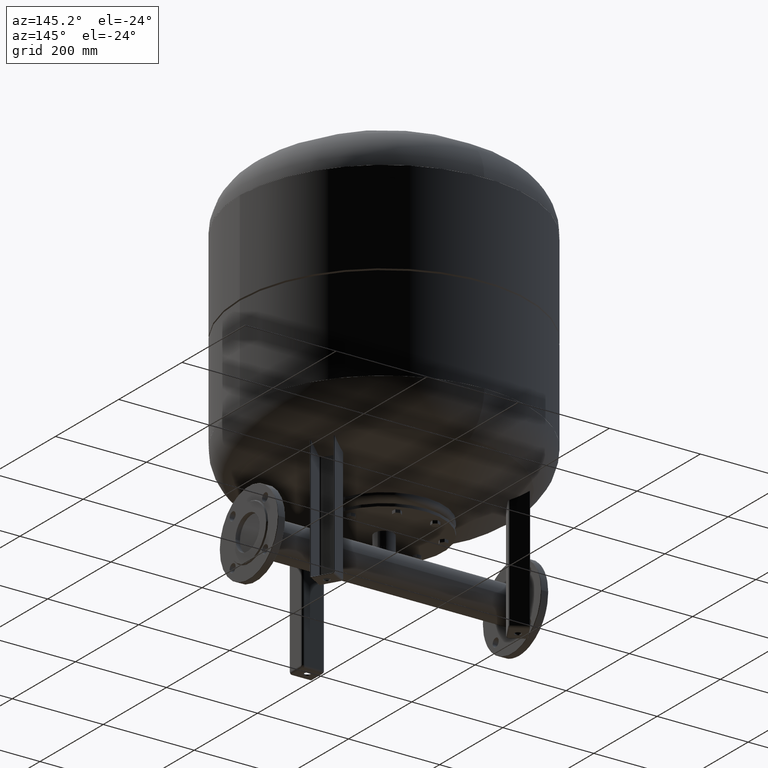
[diagram: clean part render]
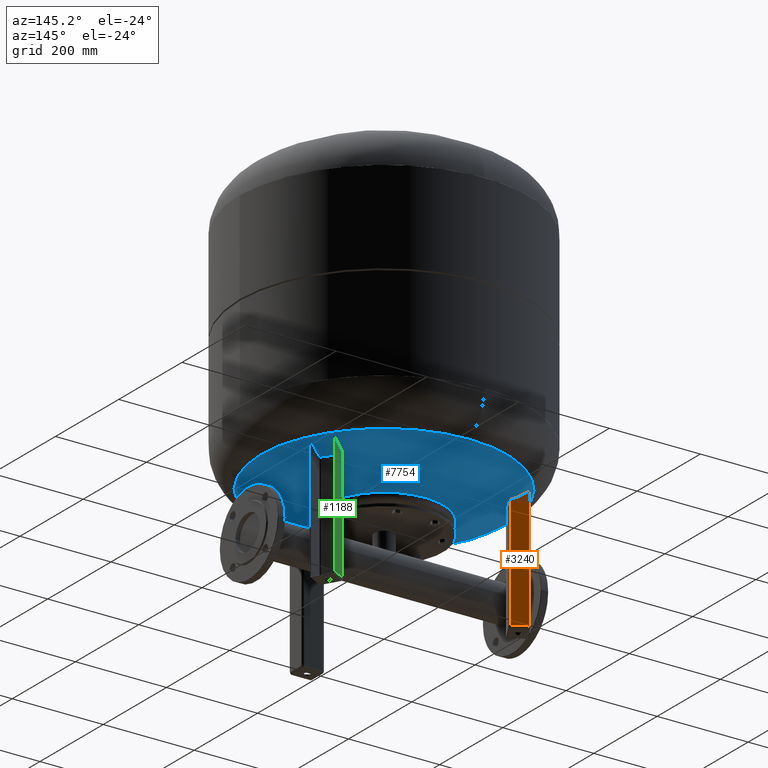
[diagram: same view with three faces highlighted in distinct colors, each labeled with its STEP entity id]
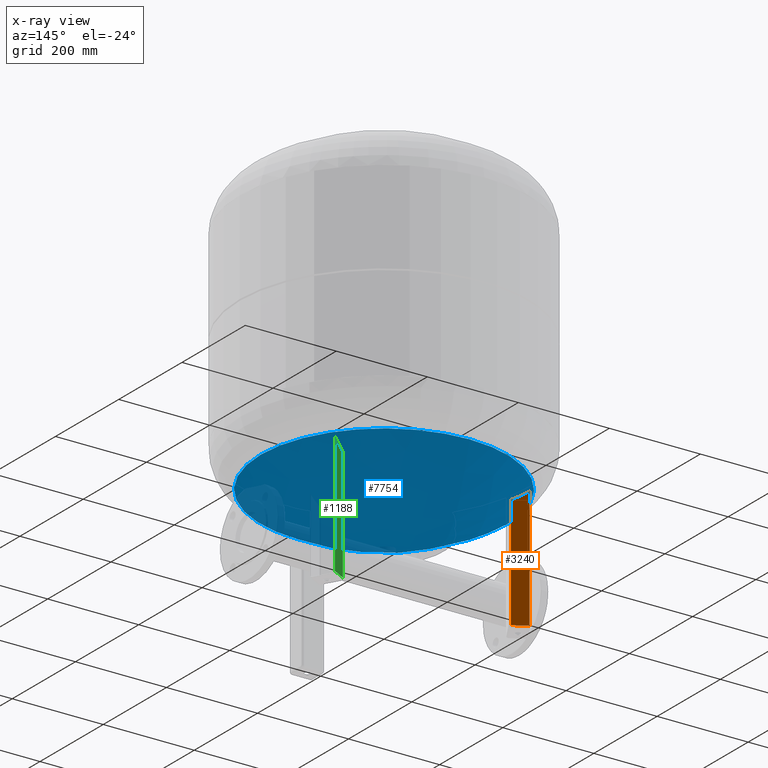
[diagram: x-ray of the same camera — body ghosted, the three highlighted faces saturated]
A machine part, auxiliary view with three faces highlighted in distinct colors.
The next image is the same camera in x-ray (body ghosted, the three faces saturated) — at least one of them is partly hidden behind the body in this view.
Their STEP definitions:

[orange] entity #3240 — the highlighted planar face has unit normal (0.5, 0.866, -0).
#2412=CARTESIAN_POINT('',(-184.520779360959750,135.400635094611120,274.0));
#2413=VERTEX_POINT('',#2412);
#2421=CARTESIAN_POINT('',(-213.965643089630670,152.400635094611090,274.0));
#2422=VERTEX_POINT('',#2421);
#2423=CARTESIAN_POINT('',(-213.965643089630670,152.400635094611090,274.0));
#2424=DIRECTION('',(0.866025403784439,-0.499999999999999,0.0));
#2425=VECTOR('',#2424,33.999999999999993);
#2426=LINE('',#2423,#2425);
#2427=EDGE_CURVE('',#2422,#2413,#2426,.T.);
#2732=CARTESIAN_POINT('',(-213.965643089630670,152.400635094611090,4.999999999999996));
#2733=VERTEX_POINT('',#2732);
#2734=CARTESIAN_POINT('',(-213.965643089630670,152.400635094611090,4.999999999999996));
#2735=DIRECTION('',(0.0,0.0,1.0));
#2736=VECTOR('',#2735,269.0);
#2737=LINE('',#2734,#2736);
#2738=EDGE_CURVE('',#2733,#2422,#2737,.T.);
#3115=CARTESIAN_POINT('',(-184.520779360959750,135.400635094611090,4.999999999999996));
#3116=VERTEX_POINT('',#3115);
#3117=CARTESIAN_POINT('',(-213.965643089630670,152.400635094611090,4.999999999999996));
#3118=DIRECTION('',(0.866025403784439,-0.500000000000000,0.0));
#3119=VECTOR('',#3118,34.000000000000007);
#3120=LINE('',#3117,#3119);
#3121=EDGE_CURVE('',#2733,#3116,#3120,.T.);
#3218=CARTESIAN_POINT('',(-184.520779360959750,135.400635094611090,4.999999999999996));
#3219=DIRECTION('',(0.0,0.0,1.0));
#3220=VECTOR('',#3219,269.0);
#3221=LINE('',#3218,#3220);
#3222=EDGE_CURVE('',#3116,#2413,#3221,.T.);
#3229=CARTESIAN_POINT('',(-214.831668493415120,152.900635094611090,-4.592425E-015));
#3230=DIRECTION('',(0.500000000000000,0.866025403784439,-1.836970E-016));
#3231=DIRECTION('',(-0.866025403784439,0.500000000000000,2.039447E-032));
#3232=AXIS2_PLACEMENT_3D('',#3229,#3230,#3231);
#3233=PLANE('',#3232);
#3234=ORIENTED_EDGE('',*,*,#2738,.T.);
#3235=ORIENTED_EDGE('',*,*,#2427,.T.);
#3236=ORIENTED_EDGE('',*,*,#3222,.F.);
#3237=ORIENTED_EDGE('',*,*,#3121,.F.);
#3238=EDGE_LOOP('',(#3234,#3235,#3236,#3237));
#3239=FACE_OUTER_BOUND('',#3238,.T.);
#3240=ADVANCED_FACE('',(#3239),#3233,.T.);

[blue] entity #7754 — the highlighted spherical surface has radius 509 mm.
#7693=CARTESIAN_POINT('',(8.065826E-015,-270.639024390243830,275.913560318702370));
#7694=VERTEX_POINT('',#7693);
#7710=CARTESIAN_POINT('',(-2.507680E-014,270.639024390243830,275.913560318702480));
#7711=VERTEX_POINT('',#7710);
#7719=CARTESIAN_POINT('',(-270.639024390243830,-1.431249E-014,275.913560318702420));
#7720=VERTEX_POINT('',#7719);
#7721=CARTESIAN_POINT('',(-7.495146E-015,-1.431249E-014,275.913560318702420));
#7722=DIRECTION('',(0.0,0.0,1.0));
#7723=DIRECTION('',(-1.0,0.0,0.0));
#7724=AXIS2_PLACEMENT_3D('',#7721,#7722,#7723);
#7725=CIRCLE('',#7724,270.639024390243830);
#7726=EDGE_CURVE('',#7711,#7720,#7725,.T.);
#7728=CARTESIAN_POINT('',(-7.495146E-015,-1.431249E-014,275.913560318702420));
#7729=DIRECTION('',(0.0,0.0,1.0));
#7730=DIRECTION('',(-1.0,0.0,0.0));
#7731=AXIS2_PLACEMENT_3D('',#7728,#7729,#7730);
#7732=CIRCLE('',#7731,270.639024390243830);
#7733=EDGE_CURVE('',#7720,#7694,#7732,.T.);
#7738=CARTESIAN_POINT('',(-1.005746E-013,-9.350178E-014,707.0));
#7739=DIRECTION('',(0.0,-1.0,0.0));
#7740=DIRECTION('',(1.0,0.0,0.0));
#7741=AXIS2_PLACEMENT_3D('',#7738,#7739,#7740);
#7742=SPHERICAL_SURFACE('',#7741,509.000000000000060);
#7743=ORIENTED_EDGE('',*,*,#7733,.F.);
#7744=ORIENTED_EDGE('',*,*,#7726,.F.);
#7745=CARTESIAN_POINT('',(-7.495146E-015,-1.431249E-014,275.913560318702420));
#7746=DIRECTION('',(0.0,0.0,1.0));
#7747=DIRECTION('',(-1.0,0.0,0.0));
#7748=AXIS2_PLACEMENT_3D('',#7745,#7746,#7747);
#7749=CIRCLE('',#7748,270.639024390243830);
#7750=EDGE_CURVE('',#7694,#7711,#7749,.T.);
#7751=ORIENTED_EDGE('',*,*,#7750,.F.);
#7752=EDGE_LOOP('',(#7743,#7744,#7751));
#7753=FACE_OUTER_BOUND('',#7752,.T.);
#7754=ADVANCED_FACE('',(#7753),#7742,.T.);

[green] entity #1188 — the highlighted planar face has unit normal (-0.5, 0.866, 0).
#250=CARTESIAN_POINT('',(213.965643089630760,152.400635094610890,274.0));
#251=VERTEX_POINT('',#250);
#259=CARTESIAN_POINT('',(184.520779360959840,135.400635094610890,274.0));
#260=VERTEX_POINT('',#259);
#261=CARTESIAN_POINT('',(184.520779360959840,135.400635094610890,274.0));
#262=DIRECTION('',(0.866025403784439,0.500000000000000,0.0));
#263=VECTOR('',#262,34.000000000000007);
#264=LINE('',#261,#263);
#265=EDGE_CURVE('',#260,#251,#264,.T.);
#695=CARTESIAN_POINT('',(213.965643089630760,152.400635094610890,5.000000000000004));
#696=VERTEX_POINT('',#695);
#723=CARTESIAN_POINT('',(213.965643089630760,152.400635094610890,5.000000000000004));
#724=DIRECTION('',(0.0,0.0,1.0));
#725=VECTOR('',#724,269.0);
#726=LINE('',#723,#725);
#727=EDGE_CURVE('',#696,#251,#726,.T.);
#923=CARTESIAN_POINT('',(184.520779360959840,135.400635094610890,5.000000000000004));
#924=VERTEX_POINT('',#923);
#932=CARTESIAN_POINT('',(184.520779360959840,135.400635094610890,5.000000000000004));
#933=DIRECTION('',(0.866025403784439,0.500000000000000,0.0));
#934=VECTOR('',#933,34.000000000000007);
#935=LINE('',#932,#934);
#936=EDGE_CURVE('',#924,#696,#935,.T.);
#1058=CARTESIAN_POINT('',(184.520779360959840,135.400635094610890,5.000000000000004));
#1059=DIRECTION('',(0.0,0.0,1.0));
#1060=VECTOR('',#1059,269.0);
#1061=LINE('',#1058,#1060);
#1062=EDGE_CURVE('',#924,#260,#1061,.T.);
#1177=CARTESIAN_POINT('',(180.190652342037650,132.900635094610890,4.592425E-015));
#1178=DIRECTION('',(-0.500000000000000,0.866025403784439,1.836970E-016));
#1179=DIRECTION('',(-0.866025403784439,-0.500000000000000,-2.039447E-032));
#1180=AXIS2_PLACEMENT_3D('',#1177,#1178,#1179);
#1181=PLANE('',#1180);
#1182=ORIENTED_EDGE('',*,*,#727,.F.);
#1183=ORIENTED_EDGE('',*,*,#936,.F.);
#1184=ORIENTED_EDGE('',*,*,#1062,.T.);
#1185=ORIENTED_EDGE('',*,*,#265,.T.);
#1186=EDGE_LOOP('',(#1182,#1183,#1184,#1185));
#1187=FACE_OUTER_BOUND('',#1186,.T.);
#1188=ADVANCED_FACE('',(#1187),#1181,.T.);